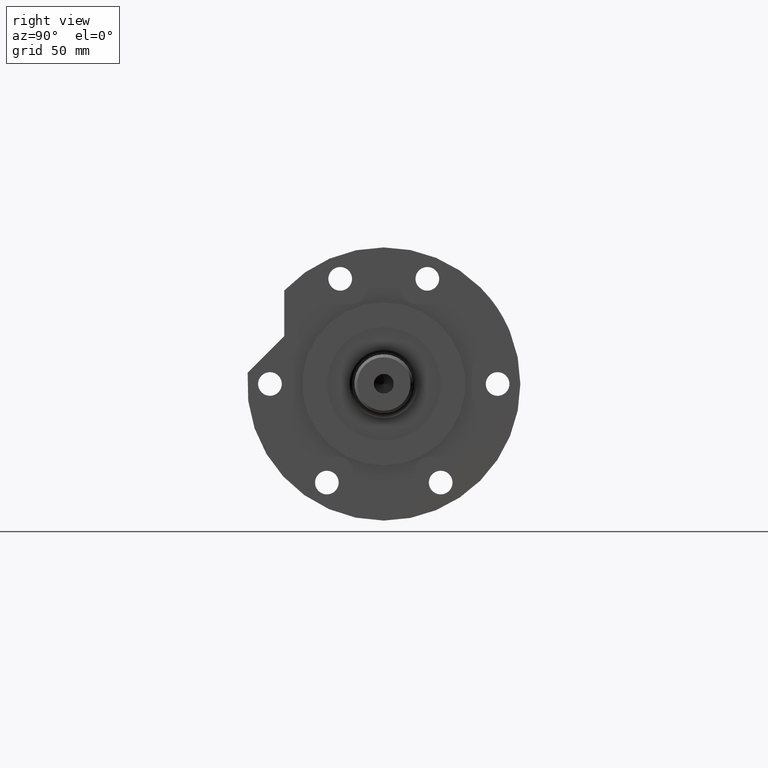
[diagram: clean part render]
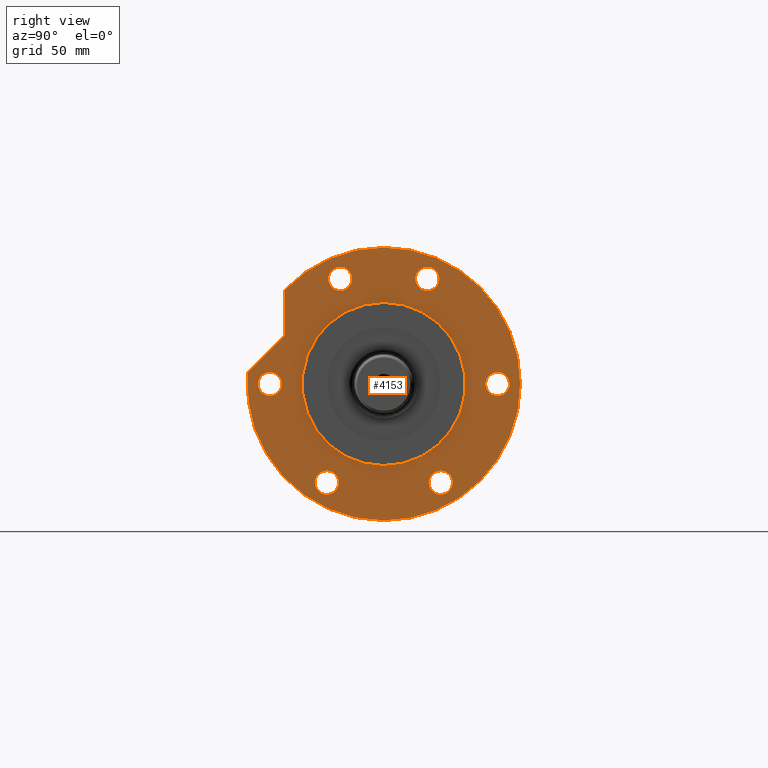
[diagram: same view with one face highlighted and labeled with its STEP entity id]
A machine part, right view. The second image highlights one B-rep face of the part: STEP entity #4153.
In plain terms, the highlighted planar face has unit normal (1, 0, -0).
Its self-contained STEP definition (entity closure, byte-faithful):
#19 = AXIS2_PLACEMENT_3D ( 'NONE', #954, #3324, #1338 ) ;
#214 = ORIENTED_EDGE ( 'NONE', *, *, #1885, .F. ) ;
#216 = CARTESIAN_POINT ( 'NONE',  ( -72.00000000000000000, 0.000000000000000000, 24.00000000000000000 ) ) ;
#276 = CARTESIAN_POINT ( 'NONE',  ( 43.00000000000000000, 5.265981236333618470E-15, 24.00000000000000000 ) ) ;
#296 = AXIS2_PLACEMENT_3D ( 'NONE', #2493, #2599, #3068 ) ;
#306 = DIRECTION ( 'NONE',  ( 0.000000000000000000, 0.000000000000000000, 1.000000000000000000 ) ) ;
#332 = DIRECTION ( 'NONE',  ( 1.000000000000000000, 0.000000000000000000, 0.000000000000000000 ) ) ;
#374 = ORIENTED_EDGE ( 'NONE', *, *, #2535, .T. ) ;
#376 = DIRECTION ( 'NONE',  ( 1.000000000000000000, 0.000000000000000000, 0.000000000000000000 ) ) ;
#514 = ORIENTED_EDGE ( 'NONE', *, *, #4059, .F. ) ;
#534 = DIRECTION ( 'NONE',  ( 1.000000000000000000, 0.000000000000000000, 0.000000000000000000 ) ) ;
#625 = EDGE_LOOP ( 'NONE', ( #4555, #5525 ) ) ;
#627 = ORIENTED_EDGE ( 'NONE', *, *, #1010, .T. ) ;
#672 = CARTESIAN_POINT ( 'NONE',  ( -51.96152422706638419, 29.99999999999987921, 24.00000000000000000 ) ) ;
#675 = CARTESIAN_POINT ( 'NONE',  ( 0.000000000000000000, -60.00000000000000000, 24.00000000000000000 ) ) ;
#682 = DIRECTION ( 'NONE',  ( 0.000000000000000000, 0.000000000000000000, 1.000000000000000000 ) ) ;
#714 = CARTESIAN_POINT ( 'NONE',  ( 49.18277195067710039, 22.96100594190562560, 24.00000000000000000 ) ) ;
#735 = CARTESIAN_POINT ( 'NONE',  ( 61.68277195067710750, -22.96100594190562560, 24.00000000000000000 ) ) ;
#790 = CARTESIAN_POINT ( 'NONE',  ( 0.000000000000000000, 0.000000000000000000, 24.00000000000000000 ) ) ;
#800 = CIRCLE ( 'NONE', #5067, 6.249999999999998224 ) ;
#846 = CARTESIAN_POINT ( 'NONE',  ( -58.21152422706618523, -30.00000000000023093, 24.00000000000000000 ) ) ;
#875 = ORIENTED_EDGE ( 'NONE', *, *, #2477, .F. ) ;
#890 = CARTESIAN_POINT ( 'NONE',  ( 5.949394898342027282, 71.75377830012563152, 24.00000000000000000 ) ) ;
#891 = VERTEX_POINT ( 'NONE', #276 ) ;
#927 = VERTEX_POINT ( 'NONE', #1879 ) ;
#954 = CARTESIAN_POINT ( 'NONE',  ( 0.000000000000000000, 0.000000000000000000, 24.00000000000000000 ) ) ;
#958 = VERTEX_POINT ( 'NONE', #1813 ) ;
#996 = LINE ( 'NONE', #1085, #5065 ) ;
#1006 = DIRECTION ( 'NONE',  ( 1.000000000000000000, 0.000000000000000000, 0.000000000000000000 ) ) ;
#1010 = EDGE_CURVE ( 'NONE', #6119, #6084, #3749, .T. ) ;
#1085 = CARTESIAN_POINT ( 'NONE',  ( 38.85158659923380498, 38.85158659923422420, 24.00000000000000000 ) ) ;
#1135 = EDGE_CURVE ( 'NONE', #2906, #927, #1652, .T. ) ;
#1178 = CARTESIAN_POINT ( 'NONE',  ( 55.43277195067710750, 22.96100594190562560, 24.00000000000000000 ) ) ;
#1182 = CARTESIAN_POINT ( 'NONE',  ( 6.249999999999999112, -60.00000000000000000, 24.00000000000000000 ) ) ;
#1190 = CARTESIAN_POINT ( 'NONE',  ( 0.000000000000000000, 0.000000000000000000, 24.00000000000000000 ) ) ;
#1236 = EDGE_CURVE ( 'NONE', #2038, #3057, #5932, .T. ) ;
#1245 = DIRECTION ( 'NONE',  ( 1.000000000000000000, 0.000000000000000000, 0.000000000000000000 ) ) ;
#1281 = VECTOR ( 'NONE', #3301, 1000.000000000000000 ) ;
#1314 = VERTEX_POINT ( 'NONE', #890 ) ;
#1318 = DIRECTION ( 'NONE',  ( 0.000000000000000000, 0.000000000000000000, 1.000000000000000000 ) ) ;
#1338 = DIRECTION ( 'NONE',  ( 1.000000000000000000, 0.000000000000000000, -0.000000000000000000 ) ) ;
#1380 = AXIS2_PLACEMENT_3D ( 'NONE', #1945, #5292, #1006 ) ;
#1405 = VERTEX_POINT ( 'NONE', #2983 ) ;
#1409 = EDGE_LOOP ( 'NONE', ( #3649, #5522 ) ) ;
#1544 = EDGE_CURVE ( 'NONE', #2389, #6119, #2349, .T. ) ;
#1569 = VERTEX_POINT ( 'NONE', #5052 ) ;
#1574 = EDGE_CURVE ( 'NONE', #3574, #1569, #2245, .T. ) ;
#1638 = VERTEX_POINT ( 'NONE', #5509 ) ;
#1652 = CIRCLE ( 'NONE', #3363, 6.249999999999999112 ) ;
#1663 = CIRCLE ( 'NONE', #4066, 6.249999999999998224 ) ;
#1667 = CIRCLE ( 'NONE', #296, 43.00000000000000000 ) ;
#1718 = EDGE_CURVE ( 'NONE', #1638, #2925, #1748, .T. ) ;
#1748 = CIRCLE ( 'NONE', #3271, 6.249999999999998224 ) ;
#1813 = CARTESIAN_POINT ( 'NONE',  ( -58.21152422706638419, 29.99999999999987921, 24.00000000000000000 ) ) ;
#1879 = CARTESIAN_POINT ( 'NONE',  ( -6.249999999999999112, 60.00000000000000000, 24.00000000000000000 ) ) ;
#1885 = EDGE_CURVE ( 'NONE', #1405, #958, #4863, .T. ) ;
#1900 = FACE_BOUND ( 'NONE', #2769, .T. ) ;
#1945 = CARTESIAN_POINT ( 'NONE',  ( 55.43277195067710750, -22.96100594190562560, 24.00000000000000000 ) ) ;
#1991 = DIRECTION ( 'NONE',  ( 1.000000000000000000, 0.000000000000000000, 0.000000000000000000 ) ) ;
#2038 = VERTEX_POINT ( 'NONE', #5890 ) ;
#2054 = CARTESIAN_POINT ( 'NONE',  ( 49.28805468567554726, 52.48511851279232587, 24.00000000000000000 ) ) ;
#2072 = CARTESIAN_POINT ( 'NONE',  ( 25.21805468567554698, 52.48511851279232587, 24.00000000000000000 ) ) ;
#2090 = CIRCLE ( 'NONE', #5561, 6.249999999999998224 ) ;
#2108 = DIRECTION ( 'NONE',  ( 1.000000000000000000, 0.000000000000000000, 0.000000000000000000 ) ) ;
#2183 = DIRECTION ( 'NONE',  ( 1.000000000000000000, 0.000000000000000000, 0.000000000000000000 ) ) ;
#2229 = DIRECTION ( 'NONE',  ( 0.000000000000000000, 0.000000000000000000, 1.000000000000000000 ) ) ;
#2245 = CIRCLE ( 'NONE', #2862, 6.249999999999999112 ) ;
#2266 = FACE_BOUND ( 'NONE', #625, .T. ) ;
#2287 = VERTEX_POINT ( 'NONE', #2678 ) ;
#2344 = ORIENTED_EDGE ( 'NONE', *, *, #5386, .F. ) ;
#2349 = CIRCLE ( 'NONE', #4150, 72.00000000000000000 ) ;
#2360 = DIRECTION ( 'NONE',  ( 1.000000000000000000, 0.000000000000000000, 0.000000000000000000 ) ) ;
#2389 = VERTEX_POINT ( 'NONE', #216 ) ;
#2477 = EDGE_CURVE ( 'NONE', #2596, #3708, #1663, .T. ) ;
#2493 = CARTESIAN_POINT ( 'NONE',  ( 0.000000000000000000, 0.000000000000000000, 24.00000000000000000 ) ) ;
#2517 = EDGE_LOOP ( 'NONE', ( #4301, #3026 ) ) ;
#2535 = EDGE_CURVE ( 'NONE', #1314, #2389, #5357, .T. ) ;
#2596 = VERTEX_POINT ( 'NONE', #714 ) ;
#2599 = DIRECTION ( 'NONE',  ( 0.000000000000000000, 0.000000000000000000, 1.000000000000000000 ) ) ;
#2613 = CARTESIAN_POINT ( 'NONE',  ( 55.43277195067710750, 22.96100594190562560, 24.00000000000000000 ) ) ;
#2678 = CARTESIAN_POINT ( 'NONE',  ( -43.00000000000000000, 0.000000000000000000, 24.00000000000000000 ) ) ;
#2769 = EDGE_LOOP ( 'NONE', ( #875, #514 ) ) ;
#2771 = AXIS2_PLACEMENT_3D ( 'NONE', #4578, #5979, #2183 ) ;
#2862 = AXIS2_PLACEMENT_3D ( 'NONE', #675, #4027, #4094 ) ;
#2884 = AXIS2_PLACEMENT_3D ( 'NONE', #1190, #5822, #1991 ) ;
#2894 = AXIS2_PLACEMENT_3D ( 'NONE', #2995, #5012, #4037 ) ;
#2895 = EDGE_CURVE ( 'NONE', #3057, #2038, #3387, .T. ) ;
#2906 = VERTEX_POINT ( 'NONE', #3137 ) ;
#2925 = VERTEX_POINT ( 'NONE', #735 ) ;
#2926 = EDGE_LOOP ( 'NONE', ( #2344, #3585, #374, #5847, #627 ) ) ;
#2939 = DIRECTION ( 'NONE',  ( 0.000000000000000000, 0.000000000000000000, 1.000000000000000000 ) ) ;
#2983 = CARTESIAN_POINT ( 'NONE',  ( -45.71152422706637708, 29.99999999999987921, 24.00000000000000000 ) ) ;
#2995 = CARTESIAN_POINT ( 'NONE',  ( 0.000000000000000000, 60.00000000000000000, 24.00000000000000000 ) ) ;
#3016 = DIRECTION ( 'NONE',  ( 1.000000000000000000, 0.000000000000000000, 0.000000000000000000 ) ) ;
#3017 = DIRECTION ( 'NONE',  ( 0.000000000000000000, 0.000000000000000000, 1.000000000000000000 ) ) ;
#3025 = EDGE_LOOP ( 'NONE', ( #3771, #214 ) ) ;
#3026 = ORIENTED_EDGE ( 'NONE', *, *, #4820, .F. ) ;
#3027 = DIRECTION ( 'NONE',  ( 0.000000000000000000, 0.000000000000000000, 1.000000000000000000 ) ) ;
#3057 = VERTEX_POINT ( 'NONE', #846 ) ;
#3068 = DIRECTION ( 'NONE',  ( 1.000000000000000000, 0.000000000000000000, 0.000000000000000000 ) ) ;
#3087 = DIRECTION ( 'NONE',  ( 0.000000000000000000, 0.000000000000000000, 1.000000000000000000 ) ) ;
#3137 = CARTESIAN_POINT ( 'NONE',  ( 6.249999999999999112, 60.00000000000000000, 24.00000000000000000 ) ) ;
#3143 = DIRECTION ( 'NONE',  ( 1.000000000000000000, 0.000000000000000000, 0.000000000000000000 ) ) ;
#3145 = FACE_BOUND ( 'NONE', #5577, .T. ) ;
#3271 = AXIS2_PLACEMENT_3D ( 'NONE', #3717, #2229, #376 ) ;
#3301 = DIRECTION ( 'NONE',  ( 1.000000000000000000, 0.000000000000000000, -0.000000000000000000 ) ) ;
#3324 = DIRECTION ( 'NONE',  ( 0.000000000000000000, 0.000000000000000000, 1.000000000000000000 ) ) ;
#3363 = AXIS2_PLACEMENT_3D ( 'NONE', #3432, #3027, #5786 ) ;
#3385 = CARTESIAN_POINT ( 'NONE',  ( 0.000000000000000000, -60.00000000000000000, 24.00000000000000000 ) ) ;
#3387 = CIRCLE ( 'NONE', #2771, 6.250000000000005329 ) ;
#3415 = EDGE_CURVE ( 'NONE', #2925, #1638, #5261, .T. ) ;
#3432 = CARTESIAN_POINT ( 'NONE',  ( 0.000000000000000000, 60.00000000000000000, 24.00000000000000000 ) ) ;
#3568 = CARTESIAN_POINT ( 'NONE',  ( -51.96152422706617813, -30.00000000000023093, 24.00000000000000000 ) ) ;
#3570 = CARTESIAN_POINT ( 'NONE',  ( 0.000000000000000000, 0.000000000000000000, 24.00000000000000000 ) ) ;
#3574 = VERTEX_POINT ( 'NONE', #1182 ) ;
#3585 = ORIENTED_EDGE ( 'NONE', *, *, #5119, .F. ) ;
#3649 = ORIENTED_EDGE ( 'NONE', *, *, #4337, .F. ) ;
#3670 = CARTESIAN_POINT ( 'NONE',  ( 61.68277195067710750, 22.96100594190562560, 24.00000000000000000 ) ) ;
#3698 = LINE ( 'NONE', #6007, #1281 ) ;
#3708 = VERTEX_POINT ( 'NONE', #3670 ) ;
#3717 = CARTESIAN_POINT ( 'NONE',  ( 55.43277195067710750, -22.96100594190562560, 24.00000000000000000 ) ) ;
#3722 = FACE_BOUND ( 'NONE', #3025, .T. ) ;
#3749 = CIRCLE ( 'NONE', #5734, 72.00000000000000000 ) ;
#3771 = ORIENTED_EDGE ( 'NONE', *, *, #6126, .F. ) ;
#3888 = DIRECTION ( 'NONE',  ( 0.7071067811865513475, -0.7071067811865436870, 0.000000000000000000 ) ) ;
#3906 = EDGE_CURVE ( 'NONE', #927, #2906, #4770, .T. ) ;
#3930 = DIRECTION ( 'NONE',  ( 0.000000000000000000, 0.000000000000000000, 1.000000000000000000 ) ) ;
#3934 = VERTEX_POINT ( 'NONE', #2072 ) ;
#3963 = AXIS2_PLACEMENT_3D ( 'NONE', #3570, #306, #3143 ) ;
#4027 = DIRECTION ( 'NONE',  ( 0.000000000000000000, 0.000000000000000000, 1.000000000000000000 ) ) ;
#4037 = DIRECTION ( 'NONE',  ( 1.000000000000000000, 0.000000000000000000, 0.000000000000000000 ) ) ;
#4059 = EDGE_CURVE ( 'NONE', #3708, #2596, #800, .T. ) ;
#4066 = AXIS2_PLACEMENT_3D ( 'NONE', #2613, #5009, #2108 ) ;
#4094 = DIRECTION ( 'NONE',  ( 1.000000000000000000, 0.000000000000000000, 0.000000000000000000 ) ) ;
#4150 = AXIS2_PLACEMENT_3D ( 'NONE', #790, #4543, #1245 ) ;
#4153 = ADVANCED_FACE ( 'NONE', ( #3145, #1900, #4636, #5637, #2266, #3722, #5177, #5603 ), #5703, .T. ) ;
#4261 = ORIENTED_EDGE ( 'NONE', *, *, #3906, .F. ) ;
#4276 = AXIS2_PLACEMENT_3D ( 'NONE', #3385, #3017, #534 ) ;
#4301 = ORIENTED_EDGE ( 'NONE', *, *, #4914, .F. ) ;
#4337 = EDGE_CURVE ( 'NONE', #1569, #3574, #5255, .T. ) ;
#4442 = DIRECTION ( 'NONE',  ( 1.000000000000000000, 0.000000000000000000, 0.000000000000000000 ) ) ;
#4517 = CARTESIAN_POINT ( 'NONE',  ( 72.00000000000000000, 8.817456953860941711E-15, 24.00000000000000000 ) ) ;
#4543 = DIRECTION ( 'NONE',  ( 0.000000000000000000, 0.000000000000000000, 1.000000000000000000 ) ) ;
#4555 = ORIENTED_EDGE ( 'NONE', *, *, #2895, .F. ) ;
#4578 = CARTESIAN_POINT ( 'NONE',  ( -51.96152422706617813, -30.00000000000023093, 24.00000000000000000 ) ) ;
#4632 = AXIS2_PLACEMENT_3D ( 'NONE', #3568, #682, #332 ) ;
#4636 = FACE_BOUND ( 'NONE', #5906, .T. ) ;
#4770 = CIRCLE ( 'NONE', #2894, 6.249999999999999112 ) ;
#4810 = ORIENTED_EDGE ( 'NONE', *, *, #1135, .F. ) ;
#4817 = DIRECTION ( 'NONE',  ( 1.000000000000000000, 0.000000000000000000, 0.000000000000000000 ) ) ;
#4820 = EDGE_CURVE ( 'NONE', #891, #2287, #1667, .T. ) ;
#4863 = CIRCLE ( 'NONE', #5537, 6.249999999999998224 ) ;
#4875 = CIRCLE ( 'NONE', #2884, 43.00000000000000000 ) ;
#4914 = EDGE_CURVE ( 'NONE', #2287, #891, #4875, .T. ) ;
#5009 = DIRECTION ( 'NONE',  ( 0.000000000000000000, 0.000000000000000000, 1.000000000000000000 ) ) ;
#5012 = DIRECTION ( 'NONE',  ( 0.000000000000000000, 0.000000000000000000, 1.000000000000000000 ) ) ;
#5052 = CARTESIAN_POINT ( 'NONE',  ( -6.249999999999999112, -60.00000000000000000, 24.00000000000000000 ) ) ;
#5065 = VECTOR ( 'NONE', #3888, 1000.000000000000000 ) ;
#5067 = AXIS2_PLACEMENT_3D ( 'NONE', #1178, #3087, #4442 ) ;
#5119 = EDGE_CURVE ( 'NONE', #1314, #3934, #996, .T. ) ;
#5155 = ORIENTED_EDGE ( 'NONE', *, *, #3415, .F. ) ;
#5177 = FACE_OUTER_BOUND ( 'NONE', #2926, .T. ) ;
#5255 = CIRCLE ( 'NONE', #4276, 6.249999999999999112 ) ;
#5261 = CIRCLE ( 'NONE', #1380, 6.249999999999998224 ) ;
#5292 = DIRECTION ( 'NONE',  ( 0.000000000000000000, 0.000000000000000000, 1.000000000000000000 ) ) ;
#5357 = CIRCLE ( 'NONE', #3963, 72.00000000000000000 ) ;
#5386 = EDGE_CURVE ( 'NONE', #3934, #6084, #3698, .T. ) ;
#5413 = ORIENTED_EDGE ( 'NONE', *, *, #1718, .F. ) ;
#5509 = CARTESIAN_POINT ( 'NONE',  ( 49.18277195067710039, -22.96100594190562560, 24.00000000000000000 ) ) ;
#5522 = ORIENTED_EDGE ( 'NONE', *, *, #1574, .F. ) ;
#5525 = ORIENTED_EDGE ( 'NONE', *, *, #1236, .F. ) ;
#5537 = AXIS2_PLACEMENT_3D ( 'NONE', #5795, #2939, #2360 ) ;
#5561 = AXIS2_PLACEMENT_3D ( 'NONE', #672, #3930, #3016 ) ;
#5577 = EDGE_LOOP ( 'NONE', ( #4261, #4810 ) ) ;
#5584 = CARTESIAN_POINT ( 'NONE',  ( 0.000000000000000000, 0.000000000000000000, 24.00000000000000000 ) ) ;
#5603 = FACE_BOUND ( 'NONE', #2517, .T. ) ;
#5637 = FACE_BOUND ( 'NONE', #1409, .T. ) ;
#5703 = PLANE ( 'NONE',  #19 ) ;
#5734 = AXIS2_PLACEMENT_3D ( 'NONE', #5584, #1318, #4817 ) ;
#5786 = DIRECTION ( 'NONE',  ( 1.000000000000000000, 0.000000000000000000, 0.000000000000000000 ) ) ;
#5795 = CARTESIAN_POINT ( 'NONE',  ( -51.96152422706638419, 29.99999999999987921, 24.00000000000000000 ) ) ;
#5822 = DIRECTION ( 'NONE',  ( 0.000000000000000000, 0.000000000000000000, 1.000000000000000000 ) ) ;
#5847 = ORIENTED_EDGE ( 'NONE', *, *, #1544, .T. ) ;
#5890 = CARTESIAN_POINT ( 'NONE',  ( -45.71152422706617813, -30.00000000000023093, 24.00000000000000000 ) ) ;
#5906 = EDGE_LOOP ( 'NONE', ( #5413, #5155 ) ) ;
#5932 = CIRCLE ( 'NONE', #4632, 6.250000000000005329 ) ;
#5979 = DIRECTION ( 'NONE',  ( 0.000000000000000000, 0.000000000000000000, 1.000000000000000000 ) ) ;
#6007 = CARTESIAN_POINT ( 'NONE',  ( 0.000000000000000000, 52.48511851279232587, 24.00000000000000000 ) ) ;
#6084 = VERTEX_POINT ( 'NONE', #2054 ) ;
#6119 = VERTEX_POINT ( 'NONE', #4517 ) ;
#6126 = EDGE_CURVE ( 'NONE', #958, #1405, #2090, .T. ) ;